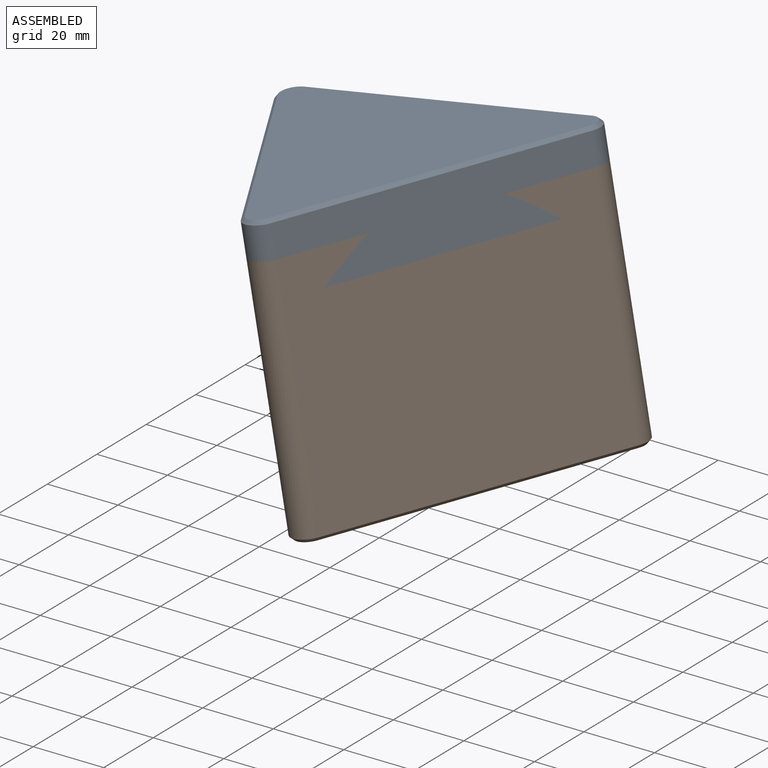
[diagram: assembled view]
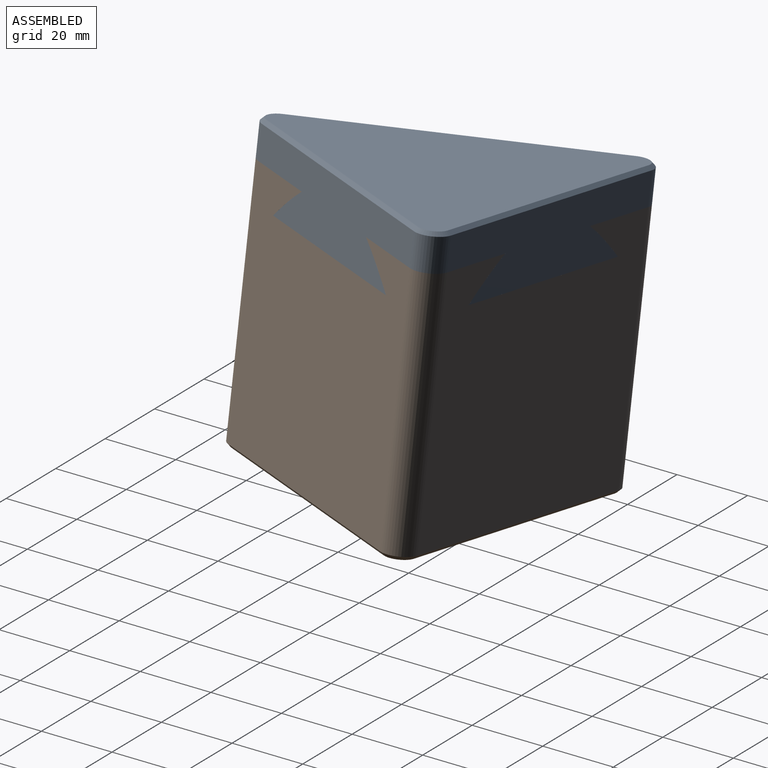
[diagram: assembled view, second angle]
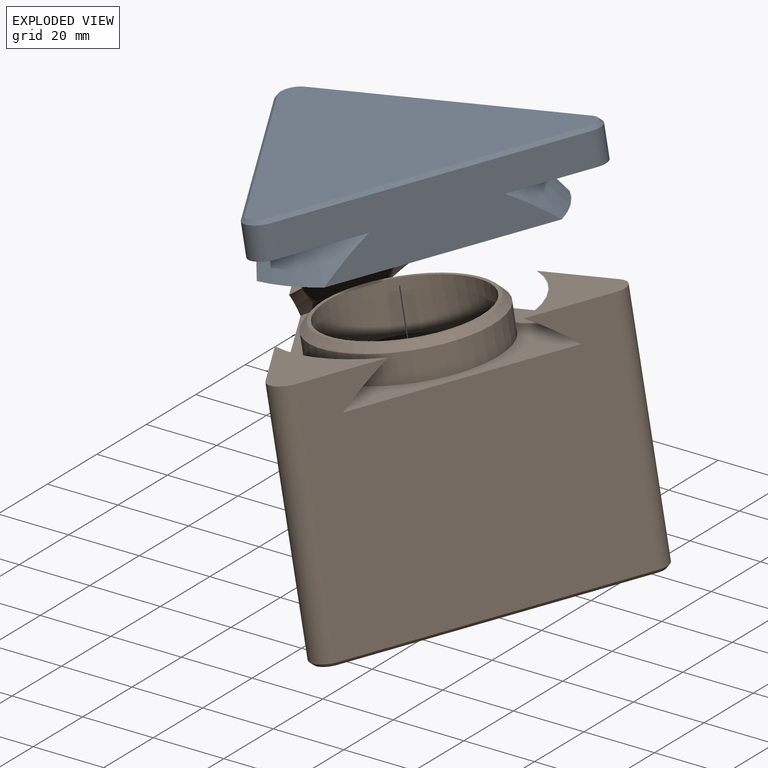
[diagram: exploded view]
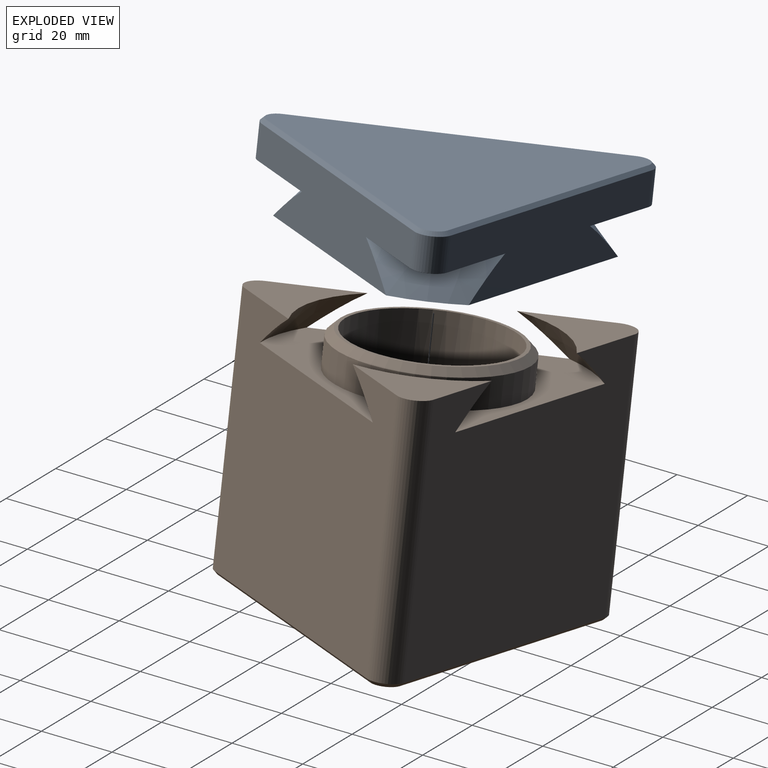
[diagram: exploded view, second angle]
ASSEMBLY  parts=2 mates=3
PART A: 23 faces, bbox 92.7x88.8x20 mm
  f0: cylinder r=5mm len=9mm, axis (0,0,-1), area 94.2mm2, adj f1,f5,f11,f19
  f1: plane 82.68x19mm, normal (0,-1,0), area 1232.9mm2, adj f0,f2,f6,f10,f11,f12,f13,f17
  f2: cylinder r=5mm len=9mm, axis (0,0,-1), area 94.2mm2, adj f1,f3,f12,f18
  f3: plane 71.6x41.34mm, normal (0.87,0.5,0), area 1232.9mm2, adj f2,f4,f6,f8,f9,f12,f13,f20
  f4: cylinder r=5mm len=9mm, axis (0,0,-1), area 94.2mm2, adj f3,f5,f9,f22
  f5: plane 71.6x41.34mm, normal (-0.87,0.5,0), area 1232.9mm2, adj f0,f4,f6,f8,f9,f10,f11,f21
  f6: plane 80.69x71mm, normal (0,0,1), area 1556.1mm2, adj f1,f3,f5,f8,f10,f13,f16
  f7: plane 90.68x79.6mm, normal (0,0,-1), area 4002.5mm2, adj f17,f18,f19,f20,f21,f22
  f8: cone r=33.74mm half-angle=40deg, axis (0,0,1), area 341.4mm2, adj f3,f5,f6,f9
  f9: plane 32.54x23.18mm, normal (0,0,1), area 349.4mm2, adj f3,f4,f5,f8
  f10: cone r=33.74mm half-angle=40deg, axis (0,0,1), area 341.4mm2, adj f1,f5,f6,f11
  f11: plane 28.88x28.18mm, normal (0,0,1), area 349.4mm2, adj f0,f1,f5,f10
  f12: plane 28.88x28.18mm, normal (0,0,1), area 349.4mm2, adj f1,f2,f3,f13
  f13: cone r=33.74mm half-angle=40deg, axis (0,0,1), area 341.4mm2, adj f1,f3,f6,f12
  f14: cylinder r=25.25mm len=50.5mm, axis (0,0,1), area 1269.2mm2, adj f15,f16
  f15: plane 50.5x50.5mm, normal (0,0,1), area 2003mm2, adj f14
  f16: cone r=25.25mm half-angle=45deg, axis (0,0,1), area 466.5mm2, adj f6,f14
  f17: plane 82.68x1mm, normal (0,-0.71,-0.71), area 116.9mm2, adj f1,f7,f18,f19
  f18: cone r=5mm half-angle=45deg, axis (0,0,1), area 13.3mm2, adj f2,f7,f17,f20
  f19: cone r=5mm half-angle=45deg, axis (0,0,1), area 13.3mm2, adj f0,f7,f17,f21
  f20: plane 72.1x42.21mm, normal (0.61,0.35,-0.71), area 116.9mm2, adj f3,f7,f18,f22
  f21: plane 72.1x42.21mm, normal (-0.61,0.35,-0.71), area 116.9mm2, adj f5,f7,f19,f22
  f22: cone r=5mm half-angle=45deg, axis (0,0,1), area 13.3mm2, adj f4,f7,f20,f21
PART B: 37 faces, bbox 94.3x90.4x71.6 mm
  f0: plane 73.22x70.62mm, normal (-0.87,0.5,0), area 5216mm2, adj f3,f16,f18,f30,f32,f33,f34,f35
  f1: plane 84.29x70.61mm, normal (0,-1,0), area 5216mm2, adj f3,f16,f17,f27,f31,f32,f35,f36
  f2: plane 73.22x70.62mm, normal (0.87,0.5,0), area 5216mm2, adj f3,f17,f18,f26,f31,f33,f34,f36
  f3: plane 80.69x71mm, normal (0,0,1), area 1925.6mm2, adj f0,f1,f2,f5,f34,f35,f36
  f4: plane 90.68x79.6mm, normal (0,0,-1), area 4002.5mm2, adj f25,f26,f27,f28,f29,f30
  f5: cylinder r=25mm len=50mm, axis (0,0,-1), area 1256.6mm2, adj f3,f7
  f6: plane 46x46mm, normal (0,0,1), area 141.4mm2, adj f7,f8
  f7: cone r=23mm half-angle=45deg, axis (0,0,-1), area 426.5mm2, adj f5,f6
  f8: cylinder r=22mm len=44mm, axis (0,0,1), area 1935.2mm2, adj f6,f9,f10,f11
  f9: bspline ~74.6x43.07mm, area 1461.8mm2, adj f8,f14,f21,f22,f23,f24
  f10: bspline ~86.14x21mm, area 1461.8mm2, adj f8,f13,f19,f20,f21,f22
  f11: bspline ~74.6x43.07mm, area 1461.8mm2, adj f8,f12,f19,f20,f23,f24
  f12: plane 71.6x41.34mm, normal (0.87,-0.5,0), area 2645.7mm2, adj f11,f15,f20,f24
  f13: plane 82.68x32mm, normal (0,1,0), area 2645.7mm2, adj f10,f15,f20,f22
  f14: plane 71.6x41.34mm, normal (-0.87,-0.5,0), area 2645.7mm2, adj f9,f15,f22,f24
  f15: plane 84.68x73.6mm, normal (0,0,1), area 3211.2mm2, adj f12,f13,f14,f20,f22,f24
  f16: cylinder r=5mm len=69mm, axis (0,0,-1), area 722.6mm2, adj f0,f1,f29,f32
  f17: cylinder r=5mm len=69mm, axis (0,0,-1), area 722.6mm2, adj f1,f2,f25,f31
  f18: cylinder r=5mm len=69mm, axis (0,0,-1), area 722.6mm2, adj f0,f2,f28,f33
  f19: bspline ~25.49x22.97mm, area 20.2mm2, adj f10,f11,f20
  f20: cylinder r=1mm len=32.19mm, axis (0,0,-1), area 67.3mm2, adj f10,f11,f12,f13,f15,f19
  f21: bspline ~25.49x22.97mm, area 25.5mm2, adj f9,f10,f22
  f22: cylinder r=1mm len=32.19mm, axis (0,0,-1), area 67.3mm2, adj f9,f10,f13,f14,f15,f21
  f23: bspline ~29.43x22.97mm, area 20.2mm2, adj f9,f11,f24
  f24: cylinder r=1mm len=32.19mm, axis (0,0,-1), area 67.3mm2, adj f9,f11,f12,f14,f15,f23
  f25: cone r=4mm half-angle=45deg, axis (0,0,1), area 13.3mm2, adj f4,f17,f26,f27
  f26: plane 72.1x42.21mm, normal (0.61,0.35,-0.71), area 116.9mm2, adj f2,f4,f25,f28
  f27: plane 82.68x1mm, normal (0,-0.71,-0.71), area 116.9mm2, adj f1,f4,f25,f29
  f28: cone r=4mm half-angle=45deg, axis (0,0,1), area 13.3mm2, adj f4,f18,f26,f30
  f29: cone r=4mm half-angle=45deg, axis (0,0,1), area 13.3mm2, adj f4,f16,f27,f30
  f30: plane 72.1x42.21mm, normal (-0.61,0.35,-0.71), area 116.9mm2, adj f0,f4,f28,f29
  f31: plane 28.87x28.17mm, normal (0,0,1), area 349.3mm2, adj f1,f2,f17,f36
  f32: plane 28.87x28.17mm, normal (0,0,1), area 349.3mm2, adj f0,f1,f16,f35
  f33: plane 32.53x23.17mm, normal (0,0,1), area 349.3mm2, adj f0,f2,f18,f34
  f34: cone r=33.74mm half-angle=40deg, axis (0,0,-1), area 358.7mm2, adj f0,f2,f3,f33
  f35: cone r=33.74mm half-angle=40deg, axis (0,0,-1), area 358.7mm2, adj f0,f1,f3,f32
  f36: cone r=33.74mm half-angle=40deg, axis (0,0,-1), area 358.7mm2, adj f1,f2,f3,f31
PLACE A rot(axis=(1,0,0.09),180deg) t=(42.73,56.5,55.09)mm
PLACE B rot(axis=(-0.09,-0.15,0.99),60.8deg) t=(81.24,13.2,-19.35)mm
MATE planar A.f6 <-> B.f34  axis (0.17,0,-0.98) through (6.47,39.78,28.39)mm
MATE planar B.f1 <-> A.f3  axis (0.85,-0.5,0.15) through (75.55,13.2,12.93)mm
MATE cylindrical B.f34 <-> A.f14  axis (-0.17,0,0.98) through (44.81,27.63,43.27)mm
